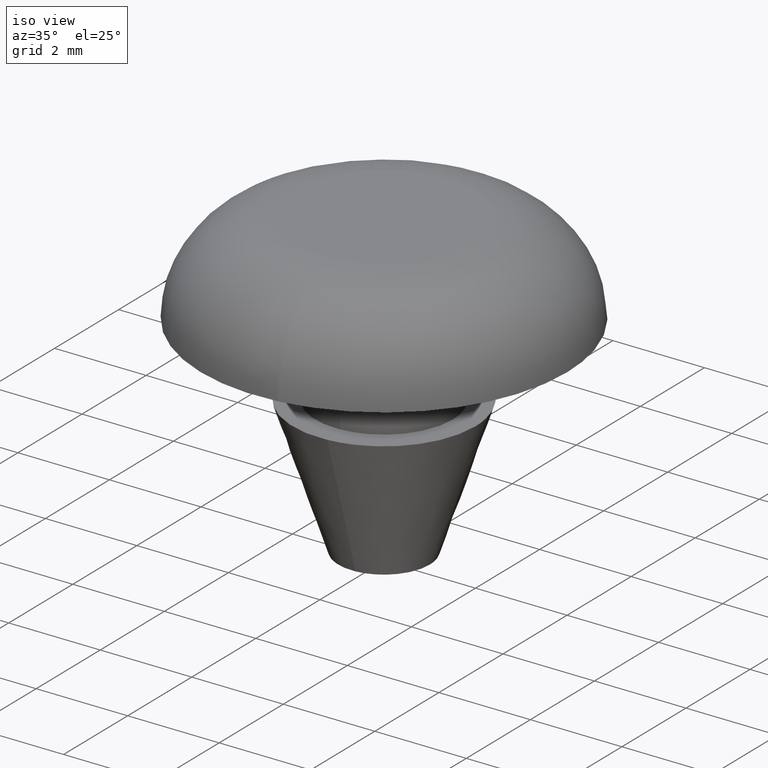
[diagram: clean part render]
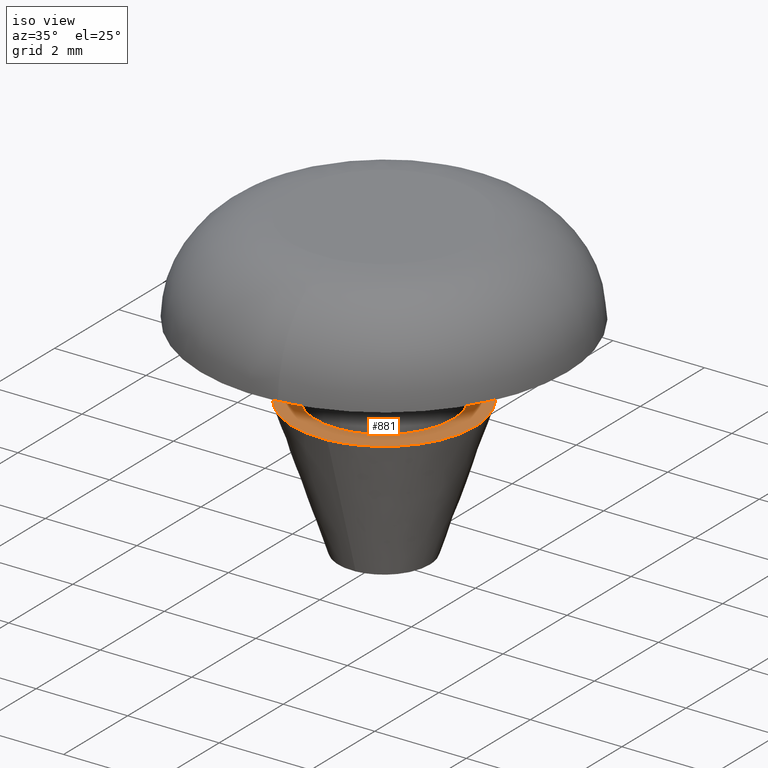
[diagram: same view with one face highlighted and labeled with its STEP entity id]
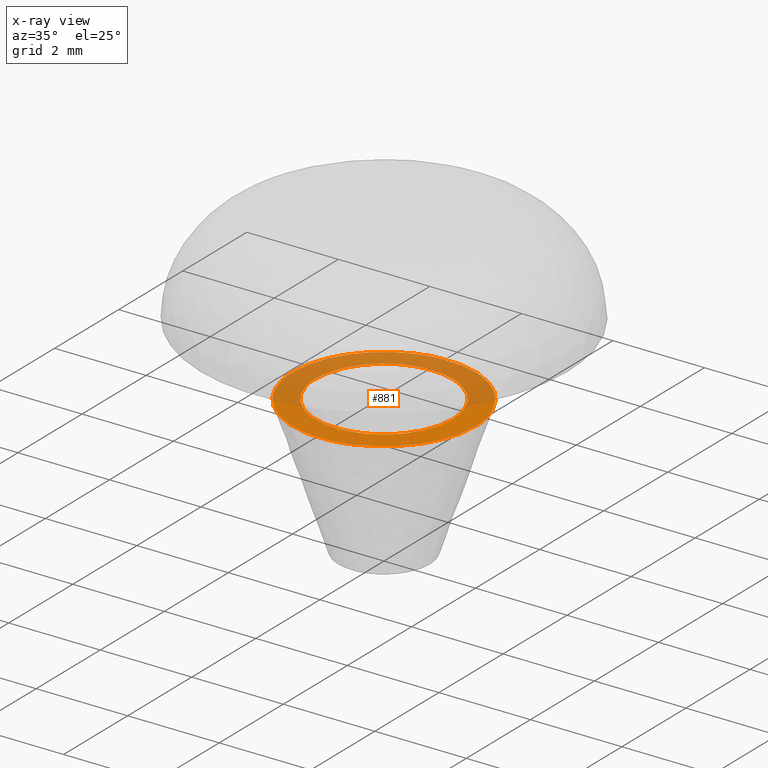
[diagram: x-ray of the same camera — body ghosted, the highlighted face saturated]
A machine part, iso view. The second image highlights one B-rep face of the part: STEP entity #881.
The next image is the same camera in x-ray: the body ghosted, the highlighted face saturated — about 53% of this face is hidden behind the body in this view.
In plain terms, the highlighted face is a freeform B-spline surface patch.
Its self-contained STEP definition (entity closure, byte-faithful):
#286=CARTESIAN_POINT('',(0.091571182612992,-1.497202297123606,3.0));
#287=VERTEX_POINT('',#286);
#293=CARTESIAN_POINT('',(1.500000000000000,0.0,3.0));
#294=VERTEX_POINT('',#293);
#295=CARTESIAN_POINT('',(1.500000000000000,0.0,3.0));
#296=CARTESIAN_POINT('',(1.500000000000000,-1.411060636320122,3.000000000000000));
#297=CARTESIAN_POINT('',(0.091571182612992,-1.497202297123605,3.000000000000001));
#305=(BOUNDED_CURVE()B_SPLINE_CURVE(2,(#295,#296,#297),.UNSPECIFIED.,.F.,.U.)B_SPLINE_CURVE_WITH_KNOTS((3,3),(0.500000000000000,0.739333149711674),.UNSPECIFIED.)CURVE()GEOMETRIC_REPRESENTATION_ITEM()RATIONAL_B_SPLINE_CURVE((1.0,0.719603773648744,0.976072443456796))REPRESENTATION_ITEM(''));
#306=EDGE_CURVE('',#294,#287,#305,.T.);
#308=CARTESIAN_POINT('',(-0.177050459774724,1.489514395597690,3.0));
#309=VERTEX_POINT('',#308);
#310=CARTESIAN_POINT('',(-0.177050459774724,1.489514395597690,3.000000000000001));
#311=CARTESIAN_POINT('',(-0.088835277835213,1.500000000000000,3.000000000000000));
#312=CARTESIAN_POINT('',(0.0,1.500000000000000,3.0));
#313=CARTESIAN_POINT('',(1.500000000000000,1.500000000000000,3.0));
#314=CARTESIAN_POINT('',(1.500000000000000,0.0,3.0));
#322=(BOUNDED_CURVE()B_SPLINE_CURVE(2,(#310,#311,#312,#313,#314),.UNSPECIFIED.,.F.,.U.)B_SPLINE_CURVE_WITH_KNOTS((3,2,3),(0.229562675979604,0.250000000000000,0.500000000000000),.UNSPECIFIED.)CURVE()GEOMETRIC_REPRESENTATION_ITEM()RATIONAL_B_SPLINE_CURVE((0.956027151025916,0.976056185534931,1.0,0.707106781186548,1.0))REPRESENTATION_ITEM(''));
#323=EDGE_CURVE('',#309,#294,#322,.T.);
#367=CARTESIAN_POINT('',(-1.500000000000000,0.0,3.0));
#368=VERTEX_POINT('',#367);
#369=CARTESIAN_POINT('',(-1.500000000000000,0.0,3.0));
#370=CARTESIAN_POINT('',(-1.500000000000000,1.332263396197527,3.0));
#371=CARTESIAN_POINT('',(-0.177050459774724,1.489514395597690,3.000000000000001));
#379=(BOUNDED_CURVE()B_SPLINE_CURVE(2,(#369,#370,#371),.UNSPECIFIED.,.F.,.U.)B_SPLINE_CURVE_WITH_KNOTS((3,3),(0.0,0.229562675979604),.UNSPECIFIED.)CURVE()GEOMETRIC_REPRESENTATION_ITEM()RATIONAL_B_SPLINE_CURVE((1.0,0.731050595651617,0.956027151025916))REPRESENTATION_ITEM(''));
#380=EDGE_CURVE('',#368,#309,#379,.T.);
#382=CARTESIAN_POINT('',(0.091571182612992,-1.497202297123605,3.000000000000001));
#383=CARTESIAN_POINT('',(0.045828329322765,-1.500000000000000,3.000000000000000));
#384=CARTESIAN_POINT('',(0.0,-1.500000000000000,3.0));
#385=CARTESIAN_POINT('',(-1.500000000000000,-1.500000000000000,3.0));
#386=CARTESIAN_POINT('',(-1.500000000000000,0.0,3.0));
#394=(BOUNDED_CURVE()B_SPLINE_CURVE(2,(#382,#383,#384,#385,#386),.UNSPECIFIED.,.F.,.U.)B_SPLINE_CURVE_WITH_KNOTS((3,2,3),(0.739333149711674,0.750000000000000,1.0),.UNSPECIFIED.)CURVE()GEOMETRIC_REPRESENTATION_ITEM()RATIONAL_B_SPLINE_CURVE((0.976072443456796,0.987503007537804,1.0,0.707106781186548,1.0))REPRESENTATION_ITEM(''));
#395=EDGE_CURVE('',#287,#368,#394,.T.);
#468=CARTESIAN_POINT('',(0.156917268877353,-1.993834493201659,2.999999261665062));
#469=VERTEX_POINT('',#468);
#475=CARTESIAN_POINT('',(-2.0,0.0,3.0));
#476=VERTEX_POINT('',#475);
#477=CARTESIAN_POINT('',(0.156917268877353,-1.993834493201660,2.999999261665062));
#478=CARTESIAN_POINT('',(0.078579760285092,-2.000000000000000,3.000000000000000));
#479=CARTESIAN_POINT('',(0.0,-2.0,3.0));
#480=CARTESIAN_POINT('',(-2.000000000000000,-2.000000000000000,3.0));
#481=CARTESIAN_POINT('',(-2.0,0.0,3.0));
#489=(BOUNDED_CURVE()B_SPLINE_CURVE(2,(#477,#478,#479,#480,#481),.UNSPECIFIED.,.F.,.U.)B_SPLINE_CURVE_WITH_KNOTS((3,2,3),(0.736331378293365,0.750000000000000,1.0),.UNSPECIFIED.)CURVE()GEOMETRIC_REPRESENTATION_ITEM()RATIONAL_B_SPLINE_CURVE((0.969723518243615,0.983986213566401,1.0,0.707106781186548,1.0))REPRESENTATION_ITEM(''));
#490=EDGE_CURVE('',#469,#476,#489,.T.);
#492=CARTESIAN_POINT('',(-0.156917268877353,1.993834493201659,2.999999261665062));
#493=VERTEX_POINT('',#492);
#494=CARTESIAN_POINT('',(-2.0,0.0,3.0));
#495=CARTESIAN_POINT('',(-2.000000000000000,1.848781823461392,3.000000000000000));
#496=CARTESIAN_POINT('',(-0.156917268877353,1.993834493201660,2.999999261665062));
#504=(BOUNDED_CURVE()B_SPLINE_CURVE(2,(#494,#495,#496),.UNSPECIFIED.,.F.,.U.)B_SPLINE_CURVE_WITH_KNOTS((3,3),(0.0,0.236331378293365),.UNSPECIFIED.)CURVE()GEOMETRIC_REPRESENTATION_ITEM()RATIONAL_B_SPLINE_CURVE((1.0,0.723120567620147,0.969723518243615))REPRESENTATION_ITEM(''));
#505=EDGE_CURVE('',#476,#493,#504,.T.);
#551=CARTESIAN_POINT('',(2.0,0.0,3.0));
#552=VERTEX_POINT('',#551);
#553=CARTESIAN_POINT('',(-0.156917268877353,1.993834493201660,2.999999261665062));
#554=CARTESIAN_POINT('',(-0.078579760285092,2.000000000000000,3.000000000000000));
#555=CARTESIAN_POINT('',(0.0,2.0,3.0));
#556=CARTESIAN_POINT('',(2.000000000000000,2.000000000000000,3.0));
#557=CARTESIAN_POINT('',(2.0,0.0,3.0));
#565=(BOUNDED_CURVE()B_SPLINE_CURVE(2,(#553,#554,#555,#556,#557),.UNSPECIFIED.,.F.,.U.)B_SPLINE_CURVE_WITH_KNOTS((3,2,3),(0.236331378293365,0.250000000000000,0.500000000000000),.UNSPECIFIED.)CURVE()GEOMETRIC_REPRESENTATION_ITEM()RATIONAL_B_SPLINE_CURVE((0.969723518243615,0.983986213566401,1.0,0.707106781186548,1.0))REPRESENTATION_ITEM(''));
#566=EDGE_CURVE('',#493,#552,#565,.T.);
#568=CARTESIAN_POINT('',(2.0,0.0,3.0));
#569=CARTESIAN_POINT('',(2.000000000000000,-1.848781823461392,3.000000000000000));
#570=CARTESIAN_POINT('',(0.156917268877353,-1.993834493201660,2.999999261665062));
#578=(BOUNDED_CURVE()B_SPLINE_CURVE(2,(#568,#569,#570),.UNSPECIFIED.,.F.,.U.)B_SPLINE_CURVE_WITH_KNOTS((3,3),(0.500000000000000,0.736331378293365),.UNSPECIFIED.)CURVE()GEOMETRIC_REPRESENTATION_ITEM()RATIONAL_B_SPLINE_CURVE((1.0,0.723120567620147,0.969723518243615))REPRESENTATION_ITEM(''));
#579=EDGE_CURVE('',#552,#469,#578,.T.);
#864=CARTESIAN_POINT('',(-2.199799992247224,-2.199189378515480,3.0));
#865=CARTESIAN_POINT('',(2.199800099535584,-2.199189378515480,3.0));
#866=CARTESIAN_POINT('',(-2.199799992247224,2.199189306989906,3.0));
#867=CARTESIAN_POINT('',(2.199800099535584,2.199189306989906,3.0));
#868=B_SPLINE_SURFACE_WITH_KNOTS('',1,1,((#864,#866),(#865,#867)),.UNSPECIFIED.,.F.,.F.,.U.,(2,2),(2,2),(0.0,4.399600091782808),(0.0,4.398378685505387),.UNSPECIFIED.);
#869=ORIENTED_EDGE('',*,*,#490,.F.);
#870=ORIENTED_EDGE('',*,*,#579,.F.);
#871=ORIENTED_EDGE('',*,*,#566,.F.);
#872=ORIENTED_EDGE('',*,*,#505,.F.);
#873=EDGE_LOOP('',(#869,#870,#871,#872));
#874=FACE_OUTER_BOUND('',#873,.T.);
#875=ORIENTED_EDGE('',*,*,#306,.T.);
#876=ORIENTED_EDGE('',*,*,#395,.T.);
#877=ORIENTED_EDGE('',*,*,#380,.T.);
#878=ORIENTED_EDGE('',*,*,#323,.T.);
#879=EDGE_LOOP('',(#875,#876,#877,#878));
#880=FACE_BOUND('',#879,.T.);
#881=ADVANCED_FACE('',(#874,#880),#868,.T.);